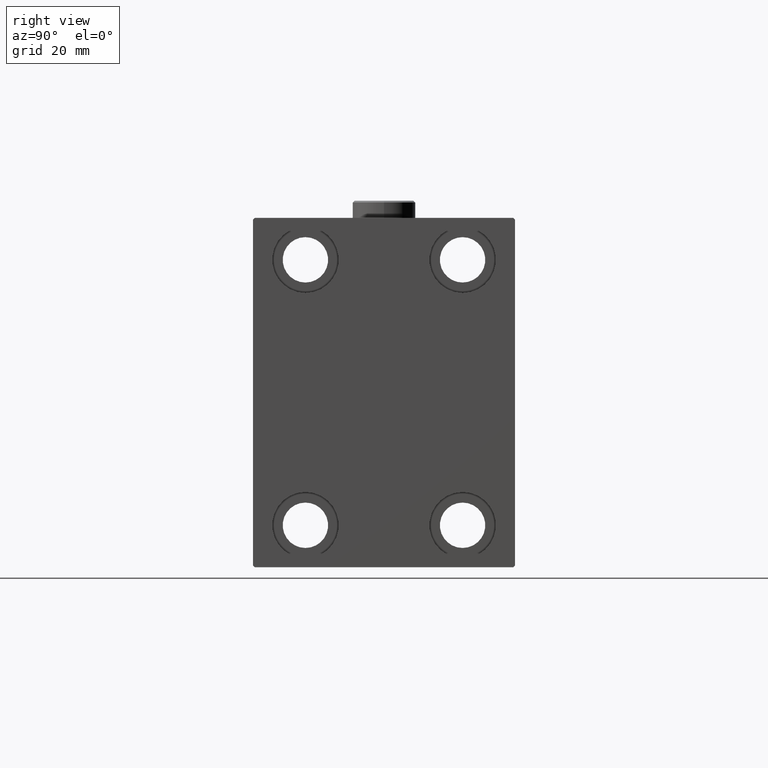
[diagram: clean part render]
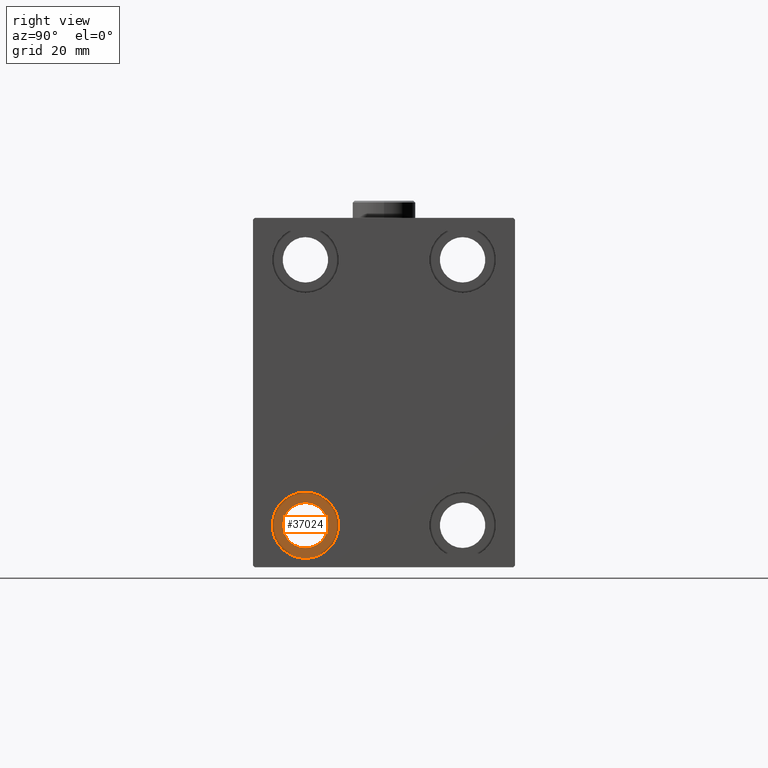
[diagram: same view with one face highlighted and labeled with its STEP entity id]
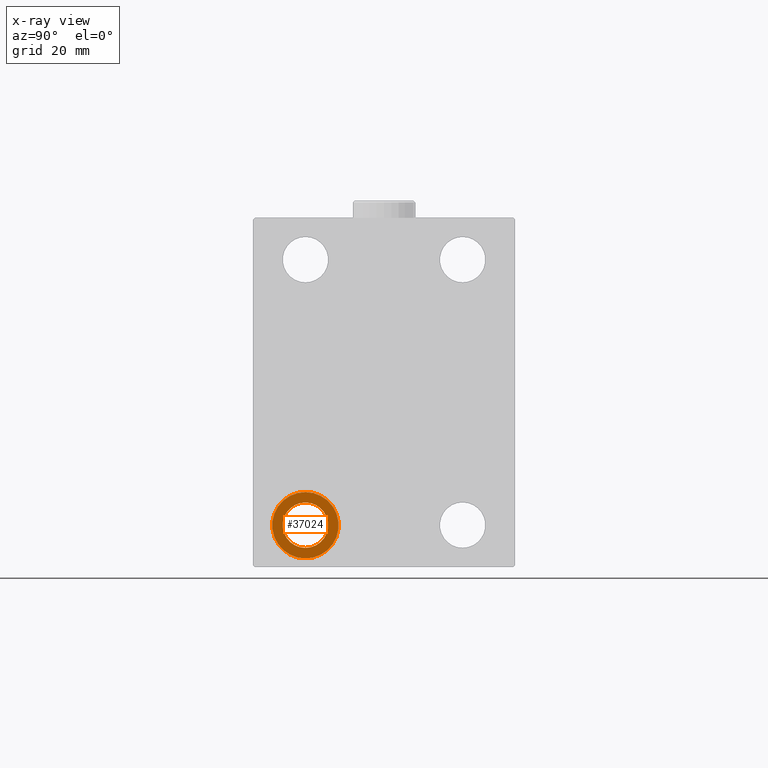
[diagram: x-ray of the same camera — body ghosted, the highlighted face saturated]
A machine part, right view. The second image highlights one B-rep face of the part: STEP entity #37024.
The next image is the same camera in x-ray: the body ghosted, the highlighted face saturated — about 0% of this face is hidden behind the body in this view.
In plain terms, the highlighted planar face has unit normal (1, 0, 0).
Its self-contained STEP definition (entity closure, byte-faithful):
#124 = AXIS2_PLACEMENT_3D ( 'NONE', #29694, #30152, #39575 ) ;
#293 = FACE_BOUND ( 'NONE', #32458, .T. ) ;
#490 = CARTESIAN_POINT ( 'NONE',  ( 139.9999999999999716, -22.50000000000000711, -47.49999999999999289 ) ) ;
#4001 = DIRECTION ( 'NONE',  ( 0.000000000000000000, 0.000000000000000000, 1.000000000000000000 ) ) ;
#4653 = CARTESIAN_POINT ( 'NONE',  ( 139.9999999999999716, -22.50000000000000711, -37.99999999999999289 ) ) ;
#6293 = AXIS2_PLACEMENT_3D ( 'NONE', #42046, #7000, #11317 ) ;
#6740 = DIRECTION ( 'NONE',  ( 1.000000000000000000, 0.000000000000000000, -0.000000000000000000 ) ) ;
#6928 = CARTESIAN_POINT ( 'NONE',  ( 139.9999999999999716, -22.50000000000000711, -31.49999999999999289 ) ) ;
#6960 = DIRECTION ( 'NONE',  ( 0.000000000000000000, 0.000000000000000000, 1.000000000000000000 ) ) ;
#7000 = DIRECTION ( 'NONE',  ( -1.000000000000000000, -0.000000000000000000, -0.000000000000000000 ) ) ;
#7092 = CIRCLE ( 'NONE', #19486, 6.499999999999999112 ) ;
#9597 = ORIENTED_EDGE ( 'NONE', *, *, #29100, .F. ) ;
#11317 = DIRECTION ( 'NONE',  ( 0.000000000000000000, 0.000000000000000000, -1.000000000000000000 ) ) ;
#12182 = ORIENTED_EDGE ( 'NONE', *, *, #18435, .F. ) ;
#15068 = CIRCLE ( 'NONE', #6293, 6.499999999999999112 ) ;
#15269 = AXIS2_PLACEMENT_3D ( 'NONE', #44988, #6740, #6960 ) ;
#16432 = CARTESIAN_POINT ( 'NONE',  ( 139.9999999999999716, -22.50000000000000711, -28.49999999999998934 ) ) ;
#17129 = VERTEX_POINT ( 'NONE', #490 ) ;
#18435 = EDGE_CURVE ( 'NONE', #28727, #17129, #43292, .T. ) ;
#19486 = AXIS2_PLACEMENT_3D ( 'NONE', #4653, #32379, #32601 ) ;
#23303 = CARTESIAN_POINT ( 'NONE',  ( 139.9999999999999716, -22.50000000000000711, -44.49999999999999289 ) ) ;
#25654 = VERTEX_POINT ( 'NONE', #23303 ) ;
#26780 = EDGE_CURVE ( 'NONE', #34820, #25654, #7092, .T. ) ;
#27506 = CIRCLE ( 'NONE', #34829, 9.500000000000001776 ) ;
#28065 = CARTESIAN_POINT ( 'NONE',  ( 139.9999999999999716, -22.50000000000000711, -37.99999999999999289 ) ) ;
#28727 = VERTEX_POINT ( 'NONE', #16432 ) ;
#29060 = EDGE_CURVE ( 'NONE', #25654, #34820, #15068, .T. ) ;
#29100 = EDGE_CURVE ( 'NONE', #17129, #28727, #27506, .T. ) ;
#29694 = CARTESIAN_POINT ( 'NONE',  ( 139.9999999999999716, -22.50000000000000711, -37.99999999999999289 ) ) ;
#30152 = DIRECTION ( 'NONE',  ( -1.000000000000000000, -0.000000000000000000, -0.000000000000000000 ) ) ;
#32321 = EDGE_LOOP ( 'NONE', ( #9597, #12182 ) ) ;
#32379 = DIRECTION ( 'NONE',  ( -1.000000000000000000, -0.000000000000000000, -0.000000000000000000 ) ) ;
#32458 = EDGE_LOOP ( 'NONE', ( #41757, #40376 ) ) ;
#32601 = DIRECTION ( 'NONE',  ( 0.000000000000000000, 0.000000000000000000, -1.000000000000000000 ) ) ;
#34820 = VERTEX_POINT ( 'NONE', #6928 ) ;
#34829 = AXIS2_PLACEMENT_3D ( 'NONE', #28065, #38377, #4001 ) ;
#34891 = PLANE ( 'NONE',  #15269 ) ;
#35121 = FACE_OUTER_BOUND ( 'NONE', #32321, .T. ) ;
#37024 = ADVANCED_FACE ( 'NONE', ( #35121, #293 ), #34891, .T. ) ;
#38377 = DIRECTION ( 'NONE',  ( -1.000000000000000000, -0.000000000000000000, -0.000000000000000000 ) ) ;
#39575 = DIRECTION ( 'NONE',  ( 0.000000000000000000, 0.000000000000000000, 1.000000000000000000 ) ) ;
#40376 = ORIENTED_EDGE ( 'NONE', *, *, #29060, .T. ) ;
#41757 = ORIENTED_EDGE ( 'NONE', *, *, #26780, .T. ) ;
#42046 = CARTESIAN_POINT ( 'NONE',  ( 139.9999999999999716, -22.50000000000000711, -37.99999999999999289 ) ) ;
#43292 = CIRCLE ( 'NONE', #124, 9.500000000000001776 ) ;
#44988 = CARTESIAN_POINT ( 'NONE',  ( 139.9999999999999716, 0.000000000000000000, 0.000000000000000000 ) ) ;